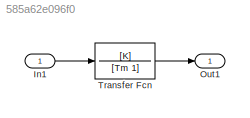
MODEL slx_585a62e096f0
KIND model
WORKSPACE source: MAT-file member
WORKSPACE K = 1.00654253445
BLOCK [Inport] In1
  IconDisplay = Port number
BLOCK [Outport] Out1
  IconDisplay = Port number
BLOCK [TransferFcn] Transfer Fcn
  Denominator = [Tm 1]
  Numerator = [K]
LINE In1:1 -> Transfer Fcn:1
LINE Transfer Fcn:1 -> Out1:1
